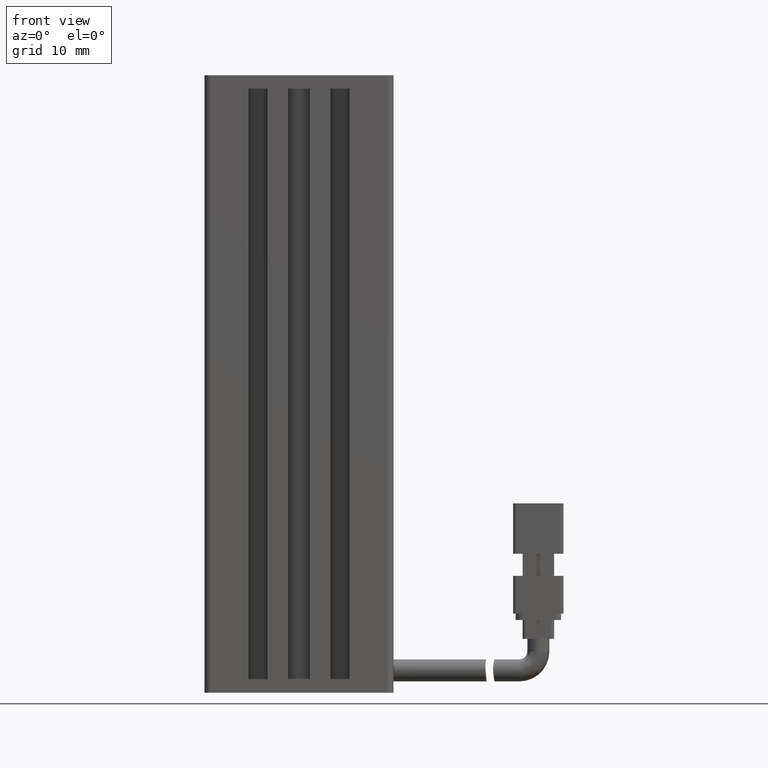
[diagram: clean part render]
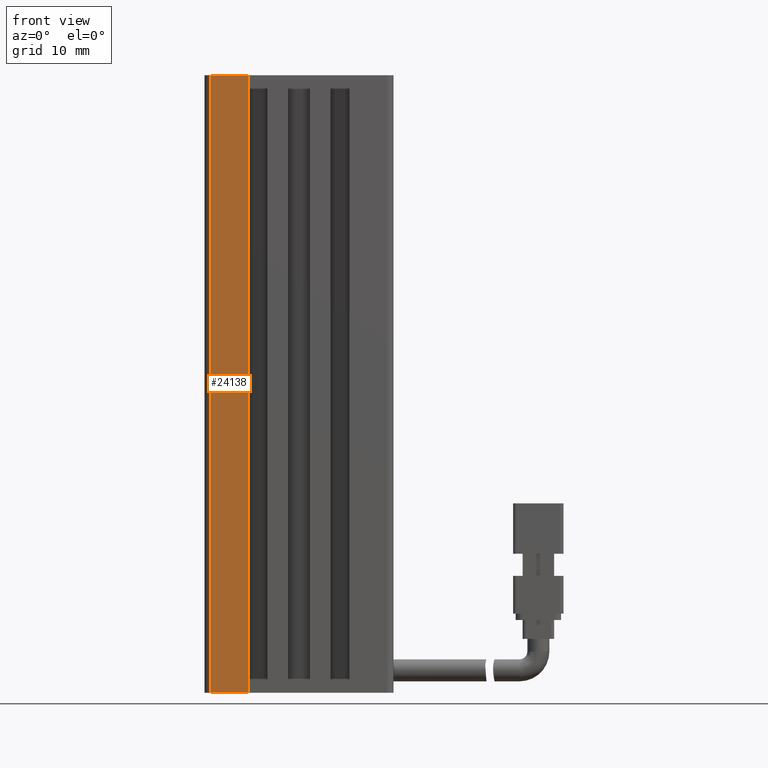
[diagram: same view with one face highlighted and labeled with its STEP entity id]
A machine part, front view. The second image highlights one B-rep face of the part: STEP entity #24138.
In plain terms, the highlighted planar face has unit normal (0, -1, 0).
Its self-contained STEP definition (entity closure, byte-faithful):
#1997 = VERTEX_POINT ( 'NONE', #31208 ) ;
#3026 = ORIENTED_EDGE ( 'NONE', *, *, #16247, .F. ) ;
#3344 = LINE ( 'NONE', #6502, #16104 ) ;
#4050 = EDGE_CURVE ( 'NONE', #21183, #29348, #3344, .T. ) ;
#5137 = CARTESIAN_POINT ( 'NONE',  ( 26.92537974683542100, 10.69594479660386800, -66.00000000000000000 ) ) ;
#5775 = LINE ( 'NONE', #12157, #24211 ) ;
#6502 = CARTESIAN_POINT ( 'NONE',  ( 26.92537974683542100, 10.69594479660386800, -66.00000000000000000 ) ) ;
#8747 = DIRECTION ( 'NONE',  ( 0.0000000000000000000, 0.0000000000000000000, 1.000000000000000000 ) ) ;
#8845 = CARTESIAN_POINT ( 'NONE',  ( 32.92537974683543200, 10.69594479660386800, -66.00000000000000000 ) ) ;
#9711 = CARTESIAN_POINT ( 'NONE',  ( 26.92537974683542100, 10.69594479660386800, -164.0000000000000000 ) ) ;
#11600 = EDGE_LOOP ( 'NONE', ( #3026, #25221, #18507, #29735 ) ) ;
#12157 = CARTESIAN_POINT ( 'NONE',  ( 40.92537974683542500, 10.69594479660386800, -66.00000000000000000 ) ) ;
#12695 = CARTESIAN_POINT ( 'NONE',  ( 40.92537974683542500, 10.69594479660386800, -66.00000000000000000 ) ) ;
#14075 = LINE ( 'NONE', #29058, #26923 ) ;
#14598 = DIRECTION ( 'NONE',  ( 1.000000000000000000, 0.0000000000000000000, 0.0000000000000000000 ) ) ;
#15099 = EDGE_CURVE ( 'NONE', #19283, #1997, #18632, .T. ) ;
#15115 = DIRECTION ( 'NONE',  ( 0.0000000000000000000, -0.0000000000000000000, -1.000000000000000000 ) ) ;
#15300 = EDGE_CURVE ( 'NONE', #29348, #19283, #14075, .T. ) ;
#16104 = VECTOR ( 'NONE', #23323, 1000.000000000000000 ) ;
#16247 = EDGE_CURVE ( 'NONE', #21183, #1997, #5775, .T. ) ;
#17439 = PLANE ( 'NONE',  #31193 ) ;
#18507 = ORIENTED_EDGE ( 'NONE', *, *, #15300, .T. ) ;
#18632 = LINE ( 'NONE', #8845, #25081 ) ;
#19283 = VERTEX_POINT ( 'NONE', #23207 ) ;
#21183 = VERTEX_POINT ( 'NONE', #5137 ) ;
#21621 = DIRECTION ( 'NONE',  ( 1.000000000000000000, 0.0000000000000000000, 0.0000000000000000000 ) ) ;
#23207 = CARTESIAN_POINT ( 'NONE',  ( 32.92537974683543200, 10.69594479660386800, -164.0000000000000000 ) ) ;
#23323 = DIRECTION ( 'NONE',  ( 0.0000000000000000000, -0.0000000000000000000, -1.000000000000000000 ) ) ;
#24138 = ADVANCED_FACE ( 'NONE', ( #26000 ), #17439, .T. ) ;
#24211 = VECTOR ( 'NONE', #21621, 1000.000000000000000 ) ;
#25081 = VECTOR ( 'NONE', #8747, 1000.000000000000000 ) ;
#25221 = ORIENTED_EDGE ( 'NONE', *, *, #4050, .T. ) ;
#26000 = FACE_OUTER_BOUND ( 'NONE', #11600, .T. ) ;
#26923 = VECTOR ( 'NONE', #14598, 1000.000000000000000 ) ;
#29058 = CARTESIAN_POINT ( 'NONE',  ( 40.92537974683542500, 10.69594479660386800, -164.0000000000000000 ) ) ;
#29348 = VERTEX_POINT ( 'NONE', #9711 ) ;
#29564 = DIRECTION ( 'NONE',  ( 0.0000000000000000000, -1.000000000000000000, 0.0000000000000000000 ) ) ;
#29735 = ORIENTED_EDGE ( 'NONE', *, *, #15099, .T. ) ;
#31193 = AXIS2_PLACEMENT_3D ( 'NONE', #12695, #29564, #15115 ) ;
#31208 = CARTESIAN_POINT ( 'NONE',  ( 32.92537974683543200, 10.69594479660386800, -66.00000000000000000 ) ) ;